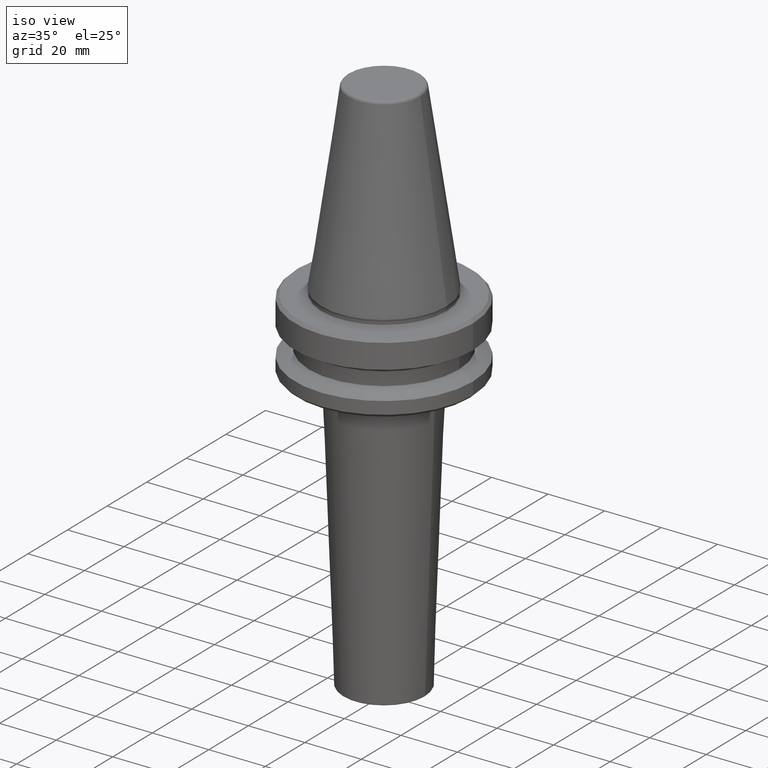
[diagram: clean part render]
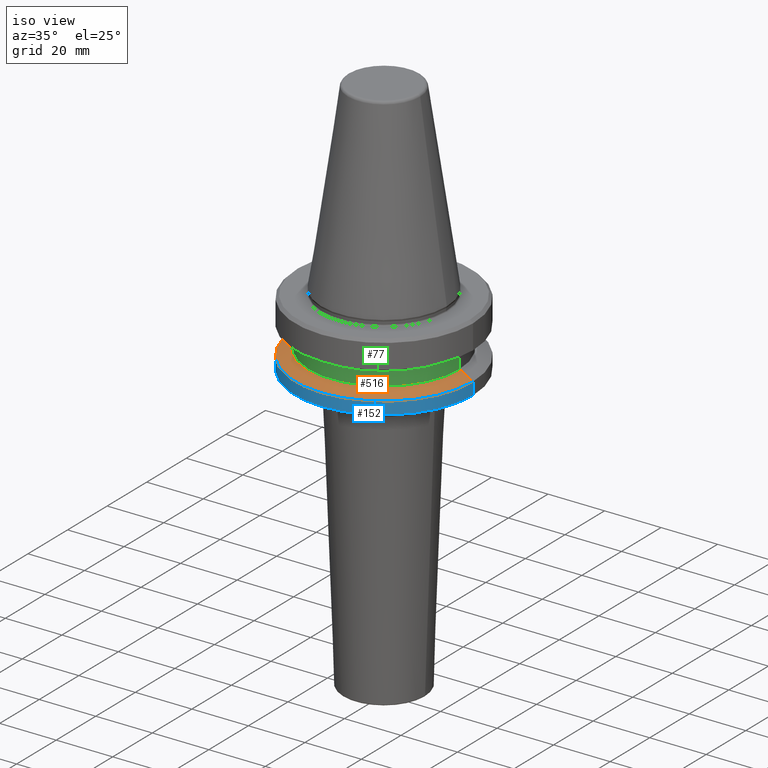
[diagram: same view with three faces highlighted in distinct colors, each labeled with its STEP entity id]
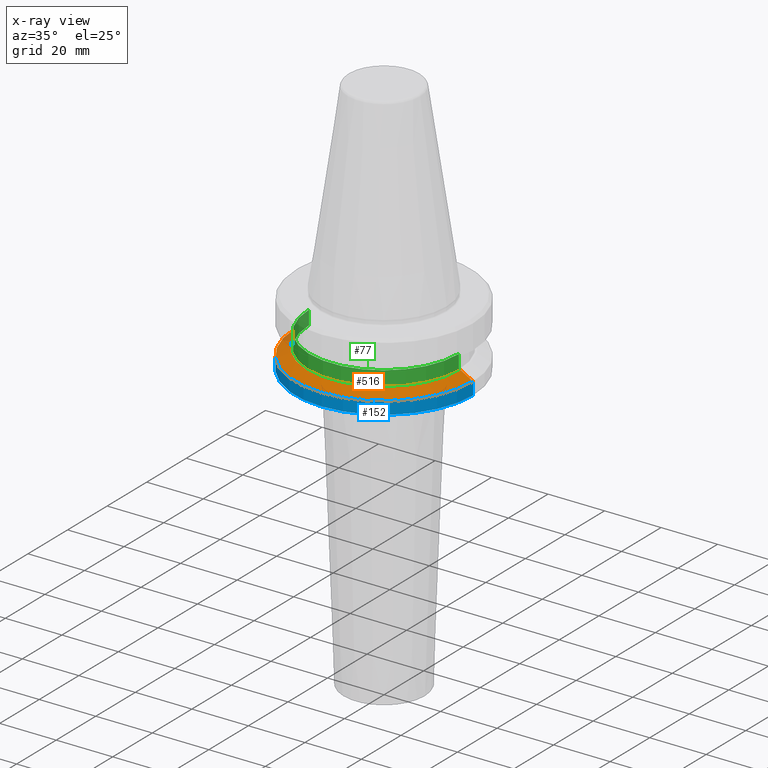
[diagram: x-ray of the same camera — body ghosted, the three highlighted faces saturated]
A machine part, iso view with three faces highlighted in distinct colors.
The next image is the same camera in x-ray (body ghosted, the three faces saturated) — at least one of them is partly hidden behind the body in this view.
Their STEP definitions:

[orange] entity #516 — the highlighted conical surface has half-angle 60 deg.
#5 = CONICAL_SURFACE ( 'NONE', #388, 31.50000000000008500, 1.047197551196587000 ) ;
#45 = EDGE_CURVE ( 'NONE', #917, #158, #689, .T. ) ;
#74 = CARTESIAN_POINT ( 'NONE',  ( 0.0000000000000000000, 0.0000000000000000000, -87.00014200631733300 ) ) ;
#142 = CARTESIAN_POINT ( 'NONE',  ( -31.50000000000008500, 3.857637417314172900E-015, -87.00014200631733300 ) ) ;
#158 = VERTEX_POINT ( 'NONE', #142 ) ;
#184 = ORIENTED_EDGE ( 'NONE', *, *, #45, .T. ) ;
#228 = CARTESIAN_POINT ( 'NONE',  ( -27.16962701892256100, 0.0000000000000000000, -84.50000000000068200 ) ) ;
#255 = CIRCLE ( 'NONE', #412, 27.16962701892256100 ) ;
#257 = FACE_OUTER_BOUND ( 'NONE', #794, .T. ) ;
#319 = CARTESIAN_POINT ( 'NONE',  ( 0.0000000000000000000, 0.0000000000000000000, -84.50000000000068200 ) ) ;
#388 = AXIS2_PLACEMENT_3D ( 'NONE', #538, #402, #1050 ) ;
#389 = CIRCLE ( 'NONE', #522, 31.50000000000008500 ) ;
#401 = VERTEX_POINT ( 'NONE', #881 ) ;
#402 = DIRECTION ( 'NONE',  ( 0.0000000000000000000, 0.0000000000000000000, -1.000000000000000000 ) ) ;
#408 = DIRECTION ( 'NONE',  ( -0.0000000000000000000, -0.0000000000000000000, 1.000000000000000000 ) ) ;
#412 = AXIS2_PLACEMENT_3D ( 'NONE', #319, #408, #746 ) ;
#456 = CARTESIAN_POINT ( 'NONE',  ( 31.50000000000008500, 0.0000000000000000000, -87.00014200631733300 ) ) ;
#474 = VECTOR ( 'NONE', #825, 1000.000000000000000 ) ;
#516 = ADVANCED_FACE ( 'NONE', ( #257 ), #5, .T. ) ;
#522 = AXIS2_PLACEMENT_3D ( 'NONE', #74, #643, #835 ) ;
#523 = ORIENTED_EDGE ( 'NONE', *, *, #975, .F. ) ;
#531 = LINE ( 'NONE', #843, #894 ) ;
#538 = CARTESIAN_POINT ( 'NONE',  ( 0.0000000000000000000, 0.0000000000000000000, -87.00014200631733300 ) ) ;
#554 = CARTESIAN_POINT ( 'NONE',  ( -31.50000000000008500, 0.0000000000000000000, -87.00014200631733300 ) ) ;
#565 = ORIENTED_EDGE ( 'NONE', *, *, #769, .F. ) ;
#585 = VERTEX_POINT ( 'NONE', #456 ) ;
#643 = DIRECTION ( 'NONE',  ( -0.0000000000000000000, -0.0000000000000000000, 1.000000000000000000 ) ) ;
#689 = LINE ( 'NONE', #554, #474 ) ;
#746 = DIRECTION ( 'NONE',  ( 1.000000000000000000, 0.0000000000000000000, 0.0000000000000000000 ) ) ;
#769 = EDGE_CURVE ( 'NONE', #917, #401, #255, .T. ) ;
#792 = EDGE_CURVE ( 'NONE', #158, #585, #389, .T. ) ;
#794 = EDGE_LOOP ( 'NONE', ( #523, #565, #184, #889 ) ) ;
#825 = DIRECTION ( 'NONE',  ( -0.8660254037844332700, 0.0000000000000000000, -0.5000000000000093300 ) ) ;
#835 = DIRECTION ( 'NONE',  ( 1.000000000000000000, 0.0000000000000000000, 0.0000000000000000000 ) ) ;
#843 = CARTESIAN_POINT ( 'NONE',  ( 31.50000000000008500, 3.857637417314172900E-015, -87.00014200631733300 ) ) ;
#867 = DIRECTION ( 'NONE',  ( 0.8660254037844332700, 1.060575238724900300E-016, -0.5000000000000093300 ) ) ;
#881 = CARTESIAN_POINT ( 'NONE',  ( 27.16962701892256100, 3.592478546794633900E-015, -84.50000000000068200 ) ) ;
#889 = ORIENTED_EDGE ( 'NONE', *, *, #792, .T. ) ;
#894 = VECTOR ( 'NONE', #867, 1000.000000000000000 ) ;
#917 = VERTEX_POINT ( 'NONE', #228 ) ;
#975 = EDGE_CURVE ( 'NONE', #401, #585, #531, .T. ) ;
#1050 = DIRECTION ( 'NONE',  ( -1.000000000000000000, 0.0000000000000000000, 0.0000000000000000000 ) ) ;

[blue] entity #152 — the highlighted cylindrical surface (partial cylindrical patch) has radius 31.5 mm, axis along (-0, -0, 1).
#6 = LINE ( 'NONE', #830, #239 ) ;
#31 = EDGE_CURVE ( 'NONE', #271, #585, #496, .T. ) ;
#46 = VERTEX_POINT ( 'NONE', #508 ) ;
#49 = ORIENTED_EDGE ( 'NONE', *, *, #171, .F. ) ;
#74 = CARTESIAN_POINT ( 'NONE',  ( 0.0000000000000000000, 0.0000000000000000000, -87.00014200631733300 ) ) ;
#76 = VECTOR ( 'NONE', #902, 1000.000000000000000 ) ;
#99 = ORIENTED_EDGE ( 'NONE', *, *, #31, .T. ) ;
#142 = CARTESIAN_POINT ( 'NONE',  ( -31.50000000000008500, 3.857637417314172900E-015, -87.00014200631733300 ) ) ;
#152 = ADVANCED_FACE ( 'NONE', ( #167 ), #903, .T. ) ;
#158 = VERTEX_POINT ( 'NONE', #142 ) ;
#167 = FACE_OUTER_BOUND ( 'NONE', #225, .T. ) ;
#171 = EDGE_CURVE ( 'NONE', #46, #158, #6, .T. ) ;
#225 = EDGE_LOOP ( 'NONE', ( #49, #587, #99, #484 ) ) ;
#239 = VECTOR ( 'NONE', #741, 1000.000000000000000 ) ;
#271 = VERTEX_POINT ( 'NONE', #1045 ) ;
#346 = CARTESIAN_POINT ( 'NONE',  ( 0.0000000000000000000, 0.0000000000000000000, 6.357346922996331500 ) ) ;
#360 = CARTESIAN_POINT ( 'NONE',  ( 31.50000000000008500, 0.0000000000000000000, 6.357346922996331500 ) ) ;
#369 = DIRECTION ( 'NONE',  ( -0.0000000000000000000, -0.0000000000000000000, 1.000000000000000000 ) ) ;
#389 = CIRCLE ( 'NONE', #522, 31.50000000000008500 ) ;
#456 = CARTESIAN_POINT ( 'NONE',  ( 31.50000000000008500, 0.0000000000000000000, -87.00014200631733300 ) ) ;
#484 = ORIENTED_EDGE ( 'NONE', *, *, #792, .F. ) ;
#496 = LINE ( 'NONE', #360, #76 ) ;
#508 = CARTESIAN_POINT ( 'NONE',  ( -31.50000000000008500, 3.857637417314172900E-015, -91.40000000000037500 ) ) ;
#522 = AXIS2_PLACEMENT_3D ( 'NONE', #74, #643, #835 ) ;
#585 = VERTEX_POINT ( 'NONE', #456 ) ;
#587 = ORIENTED_EDGE ( 'NONE', *, *, #814, .T. ) ;
#600 = CARTESIAN_POINT ( 'NONE',  ( 0.0000000000000000000, 0.0000000000000000000, -91.40000000000037500 ) ) ;
#627 = AXIS2_PLACEMENT_3D ( 'NONE', #600, #369, #725 ) ;
#643 = DIRECTION ( 'NONE',  ( -0.0000000000000000000, -0.0000000000000000000, 1.000000000000000000 ) ) ;
#705 = DIRECTION ( 'NONE',  ( 1.000000000000000000, 0.0000000000000000000, 0.0000000000000000000 ) ) ;
#725 = DIRECTION ( 'NONE',  ( 1.000000000000000000, 0.0000000000000000000, 0.0000000000000000000 ) ) ;
#741 = DIRECTION ( 'NONE',  ( -0.0000000000000000000, -0.0000000000000000000, 1.000000000000000000 ) ) ;
#751 = DIRECTION ( 'NONE',  ( -0.0000000000000000000, -0.0000000000000000000, 1.000000000000000000 ) ) ;
#789 = CIRCLE ( 'NONE', #627, 31.50000000000008500 ) ;
#792 = EDGE_CURVE ( 'NONE', #158, #585, #389, .T. ) ;
#814 = EDGE_CURVE ( 'NONE', #46, #271, #789, .T. ) ;
#830 = CARTESIAN_POINT ( 'NONE',  ( -31.50000000000008500, 3.857637417314172900E-015, 6.357346922996331500 ) ) ;
#835 = DIRECTION ( 'NONE',  ( 1.000000000000000000, 0.0000000000000000000, 0.0000000000000000000 ) ) ;
#902 = DIRECTION ( 'NONE',  ( -0.0000000000000000000, -0.0000000000000000000, 1.000000000000000000 ) ) ;
#903 = CYLINDRICAL_SURFACE ( 'NONE', #964, 31.50000000000008500 ) ;
#964 = AXIS2_PLACEMENT_3D ( 'NONE', #346, #751, #705 ) ;
#1045 = CARTESIAN_POINT ( 'NONE',  ( 31.50000000000008500, 0.0000000000000000000, -91.40000000000037500 ) ) ;

[green] entity #77 — the highlighted cylindrical surface (partial cylindrical patch) has radius 26.5 mm, axis along (-0, -0, 1).
#39 = VERTEX_POINT ( 'NONE', #984 ) ;
#77 = ADVANCED_FACE ( 'NONE', ( #911 ), #453, .T. ) ;
#81 = EDGE_CURVE ( 'NONE', #533, #39, #663, .T. ) ;
#97 = LINE ( 'NONE', #134, #916 ) ;
#103 = CARTESIAN_POINT ( 'NONE',  ( -26.50000000000019200, 3.245314017740509400E-015, -84.50000000000068200 ) ) ;
#134 = CARTESIAN_POINT ( 'NONE',  ( -26.50000000000019200, 3.245314017740509400E-015, 6.357346922996331500 ) ) ;
#143 = ORIENTED_EDGE ( 'NONE', *, *, #81, .T. ) ;
#218 = EDGE_CURVE ( 'NONE', #39, #726, #440, .T. ) ;
#246 = ORIENTED_EDGE ( 'NONE', *, *, #713, .F. ) ;
#248 = EDGE_LOOP ( 'NONE', ( #515, #143, #606, #246 ) ) ;
#264 = AXIS2_PLACEMENT_3D ( 'NONE', #932, #536, #356 ) ;
#303 = DIRECTION ( 'NONE',  ( -0.0000000000000000000, -0.0000000000000000000, 1.000000000000000000 ) ) ;
#306 = CARTESIAN_POINT ( 'NONE',  ( 26.50000000000019200, 0.0000000000000000000, -79.50000000000012800 ) ) ;
#322 = AXIS2_PLACEMENT_3D ( 'NONE', #461, #925, #506 ) ;
#356 = DIRECTION ( 'NONE',  ( 1.000000000000000000, 0.0000000000000000000, 0.0000000000000000000 ) ) ;
#440 = LINE ( 'NONE', #677, #577 ) ;
#453 = CYLINDRICAL_SURFACE ( 'NONE', #322, 26.50000000000019200 ) ;
#461 = CARTESIAN_POINT ( 'NONE',  ( 0.0000000000000000000, 0.0000000000000000000, 6.357346922996331500 ) ) ;
#482 = CIRCLE ( 'NONE', #1032, 26.50000000000019200 ) ;
#506 = DIRECTION ( 'NONE',  ( 1.000000000000000000, 0.0000000000000000000, 0.0000000000000000000 ) ) ;
#515 = ORIENTED_EDGE ( 'NONE', *, *, #921, .F. ) ;
#533 = VERTEX_POINT ( 'NONE', #103 ) ;
#536 = DIRECTION ( 'NONE',  ( -0.0000000000000000000, -0.0000000000000000000, 1.000000000000000000 ) ) ;
#577 = VECTOR ( 'NONE', #1048, 1000.000000000000000 ) ;
#582 = CARTESIAN_POINT ( 'NONE',  ( -26.50000000000019200, 3.245314017740509400E-015, -79.50000000000012800 ) ) ;
#606 = ORIENTED_EDGE ( 'NONE', *, *, #218, .T. ) ;
#663 = CIRCLE ( 'NONE', #264, 26.50000000000019200 ) ;
#677 = CARTESIAN_POINT ( 'NONE',  ( 26.50000000000019200, 0.0000000000000000000, 6.357346922996331500 ) ) ;
#713 = EDGE_CURVE ( 'NONE', #767, #726, #482, .T. ) ;
#726 = VERTEX_POINT ( 'NONE', #306 ) ;
#767 = VERTEX_POINT ( 'NONE', #582 ) ;
#911 = FACE_OUTER_BOUND ( 'NONE', #248, .T. ) ;
#916 = VECTOR ( 'NONE', #303, 1000.000000000000000 ) ;
#921 = EDGE_CURVE ( 'NONE', #533, #767, #97, .T. ) ;
#925 = DIRECTION ( 'NONE',  ( -0.0000000000000000000, -0.0000000000000000000, 1.000000000000000000 ) ) ;
#932 = CARTESIAN_POINT ( 'NONE',  ( 0.0000000000000000000, 0.0000000000000000000, -84.50000000000068200 ) ) ;
#942 = DIRECTION ( 'NONE',  ( -0.0000000000000000000, -0.0000000000000000000, 1.000000000000000000 ) ) ;
#962 = DIRECTION ( 'NONE',  ( 1.000000000000000000, 0.0000000000000000000, 0.0000000000000000000 ) ) ;
#984 = CARTESIAN_POINT ( 'NONE',  ( 26.50000000000019200, 0.0000000000000000000, -84.50000000000068200 ) ) ;
#1004 = CARTESIAN_POINT ( 'NONE',  ( 0.0000000000000000000, 0.0000000000000000000, -79.50000000000012800 ) ) ;
#1032 = AXIS2_PLACEMENT_3D ( 'NONE', #1004, #942, #962 ) ;
#1048 = DIRECTION ( 'NONE',  ( -0.0000000000000000000, -0.0000000000000000000, 1.000000000000000000 ) ) ;